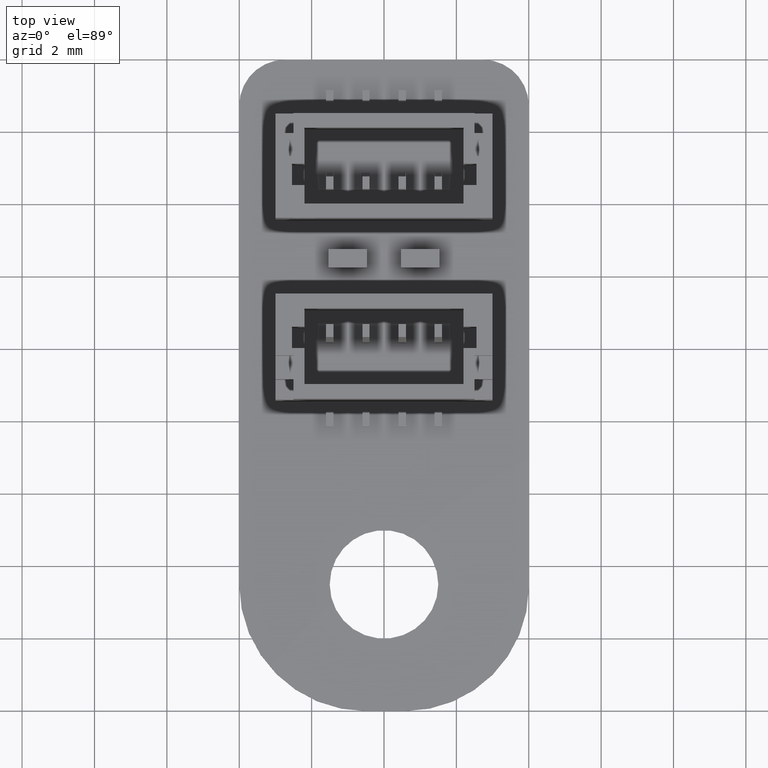
[diagram: clean part render]
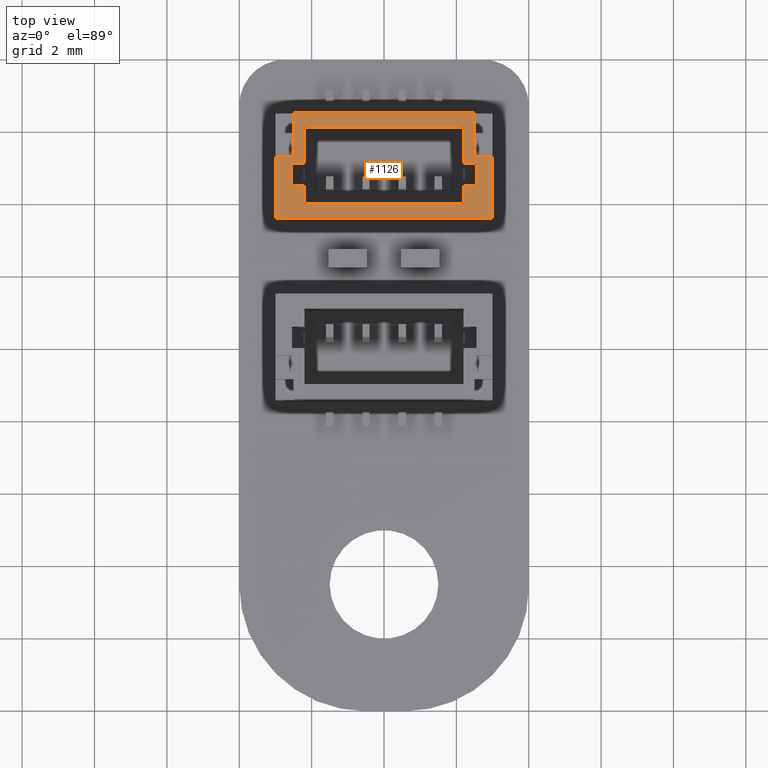
[diagram: same view with one face highlighted and labeled with its STEP entity id]
A machine part, top view. The second image highlights one B-rep face of the part: STEP entity #1126.
In plain terms, the highlighted planar face has unit normal (0, -0, -1).
Its self-contained STEP definition (entity closure, byte-faithful):
#966 = VERTEX_POINT('',#967);
#967 = CARTESIAN_POINT('',(-3.,4.25,-0.7));
#973 = EDGE_CURVE('',#974,#966,#976,.T.);
#974 = VERTEX_POINT('',#975);
#975 = CARTESIAN_POINT('',(3.,4.25,-0.7));
#976 = LINE('',#977,#978);
#977 = CARTESIAN_POINT('',(-3.,4.25,-0.7));
#978 = VECTOR('',#979,1.);
#979 = DIRECTION('',(-1.,-0.,6.982966722219E-15));
#1085 = VERTEX_POINT('',#1086);
#1086 = CARTESIAN_POINT('',(-3.,4.25,1.));
#1092 = EDGE_CURVE('',#966,#1085,#1093,.T.);
#1093 = LINE('',#1094,#1095);
#1094 = CARTESIAN_POINT('',(-3.,4.25,-0.7));
#1095 = VECTOR('',#1096,1.);
#1096 = DIRECTION('',(6.982966722219E-15,-0.,1.));
#1126 = ADVANCED_FACE('',(#1127,#1177),#1275,.F.);
#1127 = FACE_BOUND('',#1128,.T.);
#1128 = EDGE_LOOP('',(#1129,#1139,#1147,#1155,#1163,#1169,#1170,#1171));
#1129 = ORIENTED_EDGE('',*,*,#1130,.F.);
#1130 = EDGE_CURVE('',#1131,#1133,#1135,.T.);
#1131 = VERTEX_POINT('',#1132);
#1132 = CARTESIAN_POINT('',(-2.5,4.25,2.2));
#1133 = VERTEX_POINT('',#1134);
#1134 = CARTESIAN_POINT('',(-2.5,4.25,1.));
#1135 = LINE('',#1136,#1137);
#1136 = CARTESIAN_POINT('',(-2.5,4.25,-0.7));
#1137 = VECTOR('',#1138,1.);
#1138 = DIRECTION('',(-1.459277854924E-46,-1.009459692083E-30,-1.));
#1139 = ORIENTED_EDGE('',*,*,#1140,.F.);
#1140 = EDGE_CURVE('',#1141,#1131,#1143,.T.);
#1141 = VERTEX_POINT('',#1142);
#1142 = CARTESIAN_POINT('',(2.5,4.25,2.2));
#1143 = LINE('',#1144,#1145);
#1144 = CARTESIAN_POINT('',(-3.,4.25,2.2));
#1145 = VECTOR('',#1146,1.);
#1146 = DIRECTION('',(-1.,1.445602896647E-16,-0.));
#1147 = ORIENTED_EDGE('',*,*,#1148,.F.);
#1148 = EDGE_CURVE('',#1149,#1141,#1151,.T.);
#1149 = VERTEX_POINT('',#1150);
#1150 = CARTESIAN_POINT('',(2.5,4.25,1.));
#1151 = LINE('',#1152,#1153);
#1152 = CARTESIAN_POINT('',(2.5,4.25,-0.7));
#1153 = VECTOR('',#1154,1.);
#1154 = DIRECTION('',(1.459277854924E-46,1.009459692083E-30,1.));
#1155 = ORIENTED_EDGE('',*,*,#1156,.F.);
#1156 = EDGE_CURVE('',#1157,#1149,#1159,.T.);
#1157 = VERTEX_POINT('',#1158);
#1158 = CARTESIAN_POINT('',(3.,4.25,1.));
#1159 = LINE('',#1160,#1161);
#1160 = CARTESIAN_POINT('',(-3.,4.25,1.));
#1161 = VECTOR('',#1162,1.);
#1162 = DIRECTION('',(-1.,1.445602896647E-16,-0.));
#1163 = ORIENTED_EDGE('',*,*,#1164,.F.);
#1164 = EDGE_CURVE('',#974,#1157,#1165,.T.);
#1165 = LINE('',#1166,#1167);
#1166 = CARTESIAN_POINT('',(3.,4.25,-0.7));
#1167 = VECTOR('',#1168,1.);
#1168 = DIRECTION('',(1.459277854924E-46,1.009459692083E-30,1.));
#1169 = ORIENTED_EDGE('',*,*,#973,.T.);
#1170 = ORIENTED_EDGE('',*,*,#1092,.T.);
#1171 = ORIENTED_EDGE('',*,*,#1172,.F.);
#1172 = EDGE_CURVE('',#1133,#1085,#1173,.T.);
#1173 = LINE('',#1174,#1175);
#1174 = CARTESIAN_POINT('',(-3.,4.25,1.));
#1175 = VECTOR('',#1176,1.);
#1176 = DIRECTION('',(-1.,1.445602896647E-16,-0.));
#1177 = FACE_BOUND('',#1178,.T.);
#1178 = EDGE_LOOP('',(#1179,#1189,#1197,#1205,#1213,#1221,#1229,#1237,
    #1245,#1253,#1261,#1269));
#1179 = ORIENTED_EDGE('',*,*,#1180,.T.);
#1180 = EDGE_CURVE('',#1181,#1183,#1185,.T.);
#1181 = VERTEX_POINT('',#1182);
#1182 = CARTESIAN_POINT('',(-2.55,4.25,0.2));
#1183 = VERTEX_POINT('',#1184);
#1184 = CARTESIAN_POINT('',(-2.2,4.25,0.2));
#1185 = LINE('',#1186,#1187);
#1186 = CARTESIAN_POINT('',(-2.2,4.25,0.2));
#1187 = VECTOR('',#1188,1.);
#1188 = DIRECTION('',(1.,-0.,-6.982966722219E-15));
#1189 = ORIENTED_EDGE('',*,*,#1190,.T.);
#1190 = EDGE_CURVE('',#1183,#1191,#1193,.T.);
#1191 = VERTEX_POINT('',#1192);
#1192 = CARTESIAN_POINT('',(-2.2,4.25,-0.3));
#1193 = LINE('',#1194,#1195);
#1194 = CARTESIAN_POINT('',(-2.2,4.25,-0.3));
#1195 = VECTOR('',#1196,1.);
#1196 = DIRECTION('',(-7.18948142174E-15,-0.,-1.));
#1197 = ORIENTED_EDGE('',*,*,#1198,.F.);
#1198 = EDGE_CURVE('',#1199,#1191,#1201,.T.);
#1199 = VERTEX_POINT('',#1200);
#1200 = CARTESIAN_POINT('',(2.2,4.25,-0.3));
#1201 = LINE('',#1202,#1203);
#1202 = CARTESIAN_POINT('',(-3.,4.25,-0.3));
#1203 = VECTOR('',#1204,1.);
#1204 = DIRECTION('',(-1.,1.445602896647E-16,-0.));
#1205 = ORIENTED_EDGE('',*,*,#1206,.T.);
#1206 = EDGE_CURVE('',#1199,#1207,#1209,.T.);
#1207 = VERTEX_POINT('',#1208);
#1208 = CARTESIAN_POINT('',(2.2,4.25,0.2));
#1209 = LINE('',#1210,#1211);
#1210 = CARTESIAN_POINT('',(2.2,4.25,-0.3));
#1211 = VECTOR('',#1212,1.);
#1212 = DIRECTION('',(7.18948142174E-15,-0.,1.));
#1213 = ORIENTED_EDGE('',*,*,#1214,.T.);
#1214 = EDGE_CURVE('',#1207,#1215,#1217,.T.);
#1215 = VERTEX_POINT('',#1216);
#1216 = CARTESIAN_POINT('',(2.55,4.25,0.2));
#1217 = LINE('',#1218,#1219);
#1218 = CARTESIAN_POINT('',(2.2,4.25,0.2));
#1219 = VECTOR('',#1220,1.);
#1220 = DIRECTION('',(1.,-0.,-6.982966722219E-15));
#1221 = ORIENTED_EDGE('',*,*,#1222,.T.);
#1222 = EDGE_CURVE('',#1215,#1223,#1225,.T.);
#1223 = VERTEX_POINT('',#1224);
#1224 = CARTESIAN_POINT('',(2.55,4.25,0.8));
#1225 = LINE('',#1226,#1227);
#1226 = CARTESIAN_POINT('',(2.55,4.25,0.2));
#1227 = VECTOR('',#1228,1.);
#1228 = DIRECTION('',(6.982966722219E-15,-0.,1.));
#1229 = ORIENTED_EDGE('',*,*,#1230,.T.);
#1230 = EDGE_CURVE('',#1223,#1231,#1233,.T.);
#1231 = VERTEX_POINT('',#1232);
#1232 = CARTESIAN_POINT('',(2.2,4.25,0.8));
#1233 = LINE('',#1234,#1235);
#1234 = CARTESIAN_POINT('',(2.2,4.25,0.8));
#1235 = VECTOR('',#1236,1.);
#1236 = DIRECTION('',(-1.,-0.,6.982966722219E-15));
#1237 = ORIENTED_EDGE('',*,*,#1238,.T.);
#1238 = EDGE_CURVE('',#1231,#1239,#1241,.T.);
#1239 = VERTEX_POINT('',#1240);
#1240 = CARTESIAN_POINT('',(2.2,4.25,1.8));
#1241 = LINE('',#1242,#1243);
#1242 = CARTESIAN_POINT('',(2.2,4.25,-0.3));
#1243 = VECTOR('',#1244,1.);
#1244 = DIRECTION('',(7.18948142174E-15,-0.,1.));
#1245 = ORIENTED_EDGE('',*,*,#1246,.F.);
#1246 = EDGE_CURVE('',#1247,#1239,#1249,.T.);
#1247 = VERTEX_POINT('',#1248);
#1248 = CARTESIAN_POINT('',(-2.2,4.25,1.8));
#1249 = LINE('',#1250,#1251);
#1250 = CARTESIAN_POINT('',(-3.,4.25,1.8));
#1251 = VECTOR('',#1252,1.);
#1252 = DIRECTION('',(1.,-1.445602896647E-16,0.));
#1253 = ORIENTED_EDGE('',*,*,#1254,.T.);
#1254 = EDGE_CURVE('',#1247,#1255,#1257,.T.);
#1255 = VERTEX_POINT('',#1256);
#1256 = CARTESIAN_POINT('',(-2.2,4.25,0.8));
#1257 = LINE('',#1258,#1259);
#1258 = CARTESIAN_POINT('',(-2.2,4.25,-0.3));
#1259 = VECTOR('',#1260,1.);
#1260 = DIRECTION('',(-7.18948142174E-15,-0.,-1.));
#1261 = ORIENTED_EDGE('',*,*,#1262,.T.);
#1262 = EDGE_CURVE('',#1255,#1263,#1265,.T.);
#1263 = VERTEX_POINT('',#1264);
#1264 = CARTESIAN_POINT('',(-2.55,4.25,0.8));
#1265 = LINE('',#1266,#1267);
#1266 = CARTESIAN_POINT('',(-2.2,4.25,0.8));
#1267 = VECTOR('',#1268,1.);
#1268 = DIRECTION('',(-1.,-0.,7.602510820782E-15));
#1269 = ORIENTED_EDGE('',*,*,#1270,.T.);
#1270 = EDGE_CURVE('',#1263,#1181,#1271,.T.);
#1271 = LINE('',#1272,#1273);
#1272 = CARTESIAN_POINT('',(-2.55,4.25,0.2));
#1273 = VECTOR('',#1274,1.);
#1274 = DIRECTION('',(-8.428569618866E-15,-0.,-1.));
#1275 = PLANE('',#1276);
#1276 = AXIS2_PLACEMENT_3D('',#1277,#1278,#1279);
#1277 = CARTESIAN_POINT('',(-3.,4.25,-0.7));
#1278 = DIRECTION('',(-1.445602896647E-16,-1.,1.009459692083E-30));
#1279 = DIRECTION('',(1.,-1.445602896647E-16,0.));